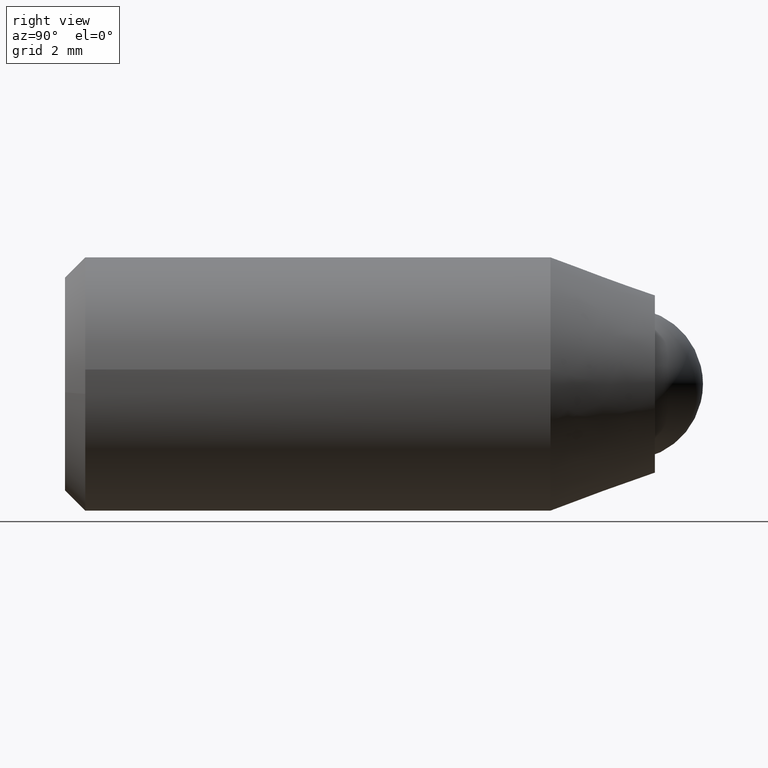
[diagram: clean part render]
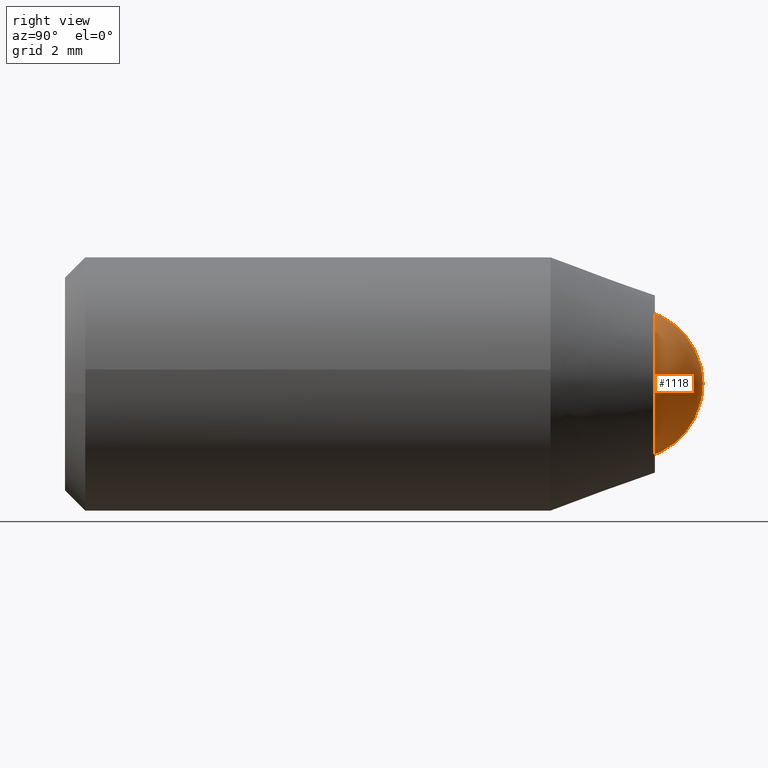
[diagram: same view with one face highlighted and labeled with its STEP entity id]
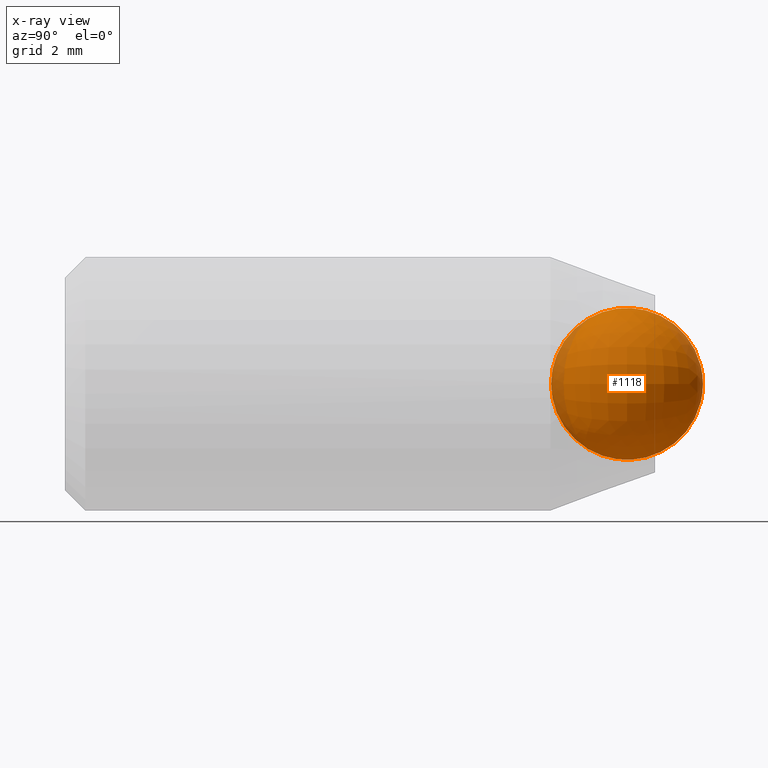
[diagram: x-ray of the same camera — body ghosted, the highlighted face saturated]
A machine part, right view. The second image highlights one B-rep face of the part: STEP entity #1118.
The next image is the same camera in x-ray: the body ghosted, the highlighted face saturated — about 6% of this face is hidden behind the body in this view.
In plain terms, the highlighted face is a freeform B-spline surface patch.
Its self-contained STEP definition (entity closure, byte-faithful):
#1033=CARTESIAN_POINT('',(0.0,0.950000000000000,4.806580E-016));
#1034=VERTEX_POINT('',#1033);
#1035=CARTESIAN_POINT('',(0.0,-2.050000000000000,4.806580E-016));
#1036=VERTEX_POINT('',#1035);
#1037=CARTESIAN_POINT('',(0.0,0.950000000000000,4.806580E-016));
#1038=CARTESIAN_POINT('',(0.0,0.950000000000000,-1.500000000000000));
#1039=CARTESIAN_POINT('',(0.0,-0.550000000000000,-1.500000000000000));
#1040=CARTESIAN_POINT('',(0.0,-2.050000000000001,-1.500000000000000));
#1041=CARTESIAN_POINT('',(0.0,-2.050000000000000,4.806580E-016));
#1049=(BOUNDED_CURVE()B_SPLINE_CURVE(2,(#1037,#1038,#1039,#1040,#1041),.UNSPECIFIED.,.F.,.U.)B_SPLINE_CURVE_WITH_KNOTS((3,2,3),(0.0,0.500000000000000,1.0),.UNSPECIFIED.)CURVE()GEOMETRIC_REPRESENTATION_ITEM()RATIONAL_B_SPLINE_CURVE((1.0,0.707106781186548,1.0,0.707106781186548,1.0))REPRESENTATION_ITEM(''));
#1050=EDGE_CURVE('',#1034,#1036,#1049,.T.);
#1052=CARTESIAN_POINT('',(0.0,0.950000000000000,4.806580E-016));
#1053=CARTESIAN_POINT('',(0.0,0.950000000000000,1.500000000000001));
#1054=CARTESIAN_POINT('',(0.0,-0.550000000000000,1.500000000000000));
#1055=CARTESIAN_POINT('',(0.0,-2.050000000000001,1.500000000000001));
#1056=CARTESIAN_POINT('',(0.0,-2.050000000000000,4.806580E-016));
#1064=(BOUNDED_CURVE()B_SPLINE_CURVE(2,(#1052,#1053,#1054,#1055,#1056),.UNSPECIFIED.,.F.,.U.)B_SPLINE_CURVE_WITH_KNOTS((3,2,3),(0.0,0.500000000000000,1.0),.UNSPECIFIED.)CURVE()GEOMETRIC_REPRESENTATION_ITEM()RATIONAL_B_SPLINE_CURVE((1.0,0.707106781186548,1.0,0.707106781186548,1.0))REPRESENTATION_ITEM(''));
#1065=EDGE_CURVE('',#1034,#1036,#1064,.T.);
#1070=CARTESIAN_POINT('',(-0.562500000000000,-1.533258295159517,-0.983258295159517));
#1071=CARTESIAN_POINT('',(-0.367924528301887,-1.440498078635034,-1.187330771513379));
#1072=CARTESIAN_POINT('',(-0.071428571428571,-0.924574588632197,-1.498298354528787));
#1073=CARTESIAN_POINT('',(-0.071428571428571,-0.175425411367803,-1.498298354528787));
#1074=CARTESIAN_POINT('',(-0.367924528301887,0.340498078635034,-1.187330771513379));
#1075=CARTESIAN_POINT('',(-0.562500000000000,0.433258295159517,-0.983258295159517));
#1076=CARTESIAN_POINT('',(-0.367924528301887,-1.737330771513379,-0.890498078635034));
#1077=CARTESIAN_POINT('',(-0.071428571428571,-1.673723765896591,-1.123723765896590));
#1078=CARTESIAN_POINT('',(0.435483870967742,-1.057488152340395,-1.522464457021187));
#1079=CARTESIAN_POINT('',(0.435483870967742,-0.042511847659604,-1.522464457021187));
#1080=CARTESIAN_POINT('',(-0.071428571428571,0.573723765896590,-1.123723765896590));
#1081=CARTESIAN_POINT('',(-0.367924528301887,0.637330771513379,-0.890498078635034));
#1082=CARTESIAN_POINT('',(-0.071428571428571,-2.048298354528788,-0.374574588632196));
#1083=CARTESIAN_POINT('',(0.435483870967742,-2.072464457021187,-0.507488152340395));
#1084=CARTESIAN_POINT('',(1.500000000000000,-1.336606636127613,-0.786606636127613));
#1085=CARTESIAN_POINT('',(1.500000000000000,0.236606636127613,-0.786606636127613));
#1086=CARTESIAN_POINT('',(0.435483870967742,0.972464457021187,-0.507488152340395));
#1087=CARTESIAN_POINT('',(-0.071428571428571,0.948298354528788,-0.374574588632196));
#1088=CARTESIAN_POINT('',(-0.071428571428571,-2.048298354528788,0.374574588632197));
#1089=CARTESIAN_POINT('',(0.435483870967742,-2.072464457021187,0.507488152340396));
#1090=CARTESIAN_POINT('',(1.500000000000000,-1.336606636127613,0.786606636127614));
#1091=CARTESIAN_POINT('',(1.500000000000000,0.236606636127613,0.786606636127614));
#1092=CARTESIAN_POINT('',(0.435483870967742,0.972464457021187,0.507488152340396));
#1093=CARTESIAN_POINT('',(-0.071428571428571,0.948298354528788,0.374574588632197));
#1094=CARTESIAN_POINT('',(-0.367924528301887,-1.737330771513379,0.890498078635034));
#1095=CARTESIAN_POINT('',(-0.071428571428571,-1.673723765896591,1.123723765896591));
#1096=CARTESIAN_POINT('',(0.435483870967742,-1.057488152340395,1.522464457021188));
#1097=CARTESIAN_POINT('',(0.435483870967742,-0.042511847659604,1.522464457021188));
#1098=CARTESIAN_POINT('',(-0.071428571428571,0.573723765896590,1.123723765896591));
#1099=CARTESIAN_POINT('',(-0.367924528301887,0.637330771513379,0.890498078635034));
#1100=CARTESIAN_POINT('',(-0.562500000000000,-1.533258295159517,0.983258295159517));
#1101=CARTESIAN_POINT('',(-0.367924528301887,-1.440498078635034,1.187330771513379));
#1102=CARTESIAN_POINT('',(-0.071428571428571,-0.924574588632197,1.498298354528788));
#1103=CARTESIAN_POINT('',(-0.071428571428571,-0.175425411367803,1.498298354528788));
#1104=CARTESIAN_POINT('',(-0.367924528301887,0.340498078635034,1.187330771513379));
#1105=CARTESIAN_POINT('',(-0.562500000000000,0.433258295159517,0.983258295159517));
#1113=(BOUNDED_SURFACE()B_SPLINE_SURFACE(2,2,((#1070,#1076,#1082,#1088,#1094,#1100),(#1071,#1077,#1083,#1089,#1095,#1101),(#1072,#1078,#1084,#1090,#1096,#1102),(#1073,#1079,#1085,#1091,#1097,#1103),(#1074,#1080,#1086,#1092,#1098,#1104),(#1075,#1081,#1087,#1093,#1099,#1105)),.UNSPECIFIED.,.F.,.F.,.U.)GEOMETRIC_REPRESENTATION_ITEM()QUASI_UNIFORM_SURFACE()RATIONAL_B_SPLINE_SURFACE(((3.200000000000000,2.650000000000000,2.100000000000000,2.100000000000000,2.650000000000000,3.200000000000000),(2.650000000000000,2.100000000000000,1.550000000000000,1.550000000000000,2.100000000000000,2.650000000000000),(2.100000000000000,1.550000000000000,1.0,1.0,1.550000000000000,2.100000000000000),(2.100000000000000,1.550000000000000,1.0,1.0,1.550000000000000,2.100000000000000),(2.650000000000000,2.100000000000000,1.550000000000000,1.550000000000000,2.100000000000000,2.650000000000000),(3.200000000000000,2.650000000000000,2.100000000000000,2.100000000000000,2.650000000000000,3.200000000000000)))REPRESENTATION_ITEM('')SURFACE());
#1114=ORIENTED_EDGE('',*,*,#1065,.T.);
#1115=ORIENTED_EDGE('',*,*,#1050,.F.);
#1116=EDGE_LOOP('',(#1114,#1115));
#1117=FACE_OUTER_BOUND('',#1116,.T.);
#1118=ADVANCED_FACE('',(#1117),#1113,.T.);